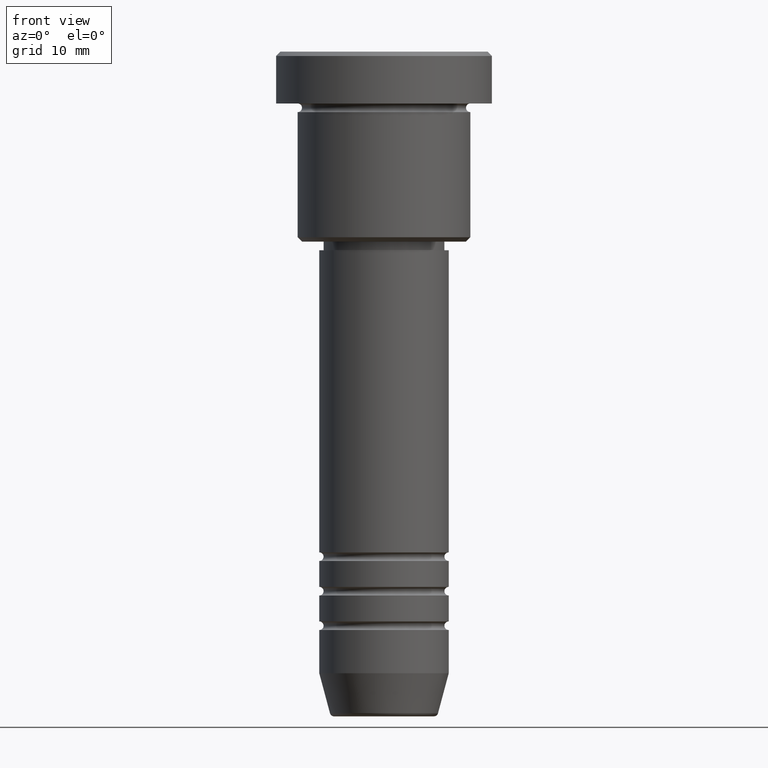
[diagram: clean part render]
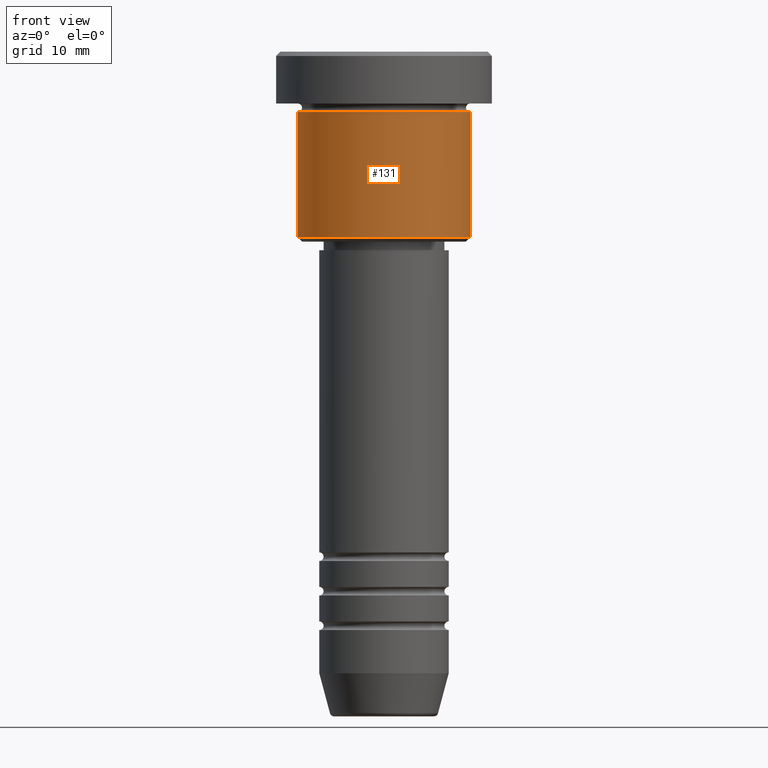
[diagram: same view with one face highlighted and labeled with its STEP entity id]
A machine part, front view. The second image highlights one B-rep face of the part: STEP entity #131.
In plain terms, the highlighted cylindrical surface (partial cylindrical patch) has radius 10 mm, axis along (-0, -0, 1).
Its self-contained STEP definition (entity closure, byte-faithful):
#2 = CARTESIAN_POINT ( 'NONE',  ( -10.00000000000000000, 1.224646799147353256E-15, -21.50000000000001776 ) ) ;
#23 = EDGE_CURVE ( 'NONE', #823, #800, #683, .T. ) ;
#30 = CARTESIAN_POINT ( 'NONE',  ( 10.00000000000000000, 0.000000000000000000, 0.000000000000000000 ) ) ;
#62 = CARTESIAN_POINT ( 'NONE',  ( 0.000000000000000000, 0.000000000000000000, -21.50000000000001776 ) ) ;
#127 = AXIS2_PLACEMENT_3D ( 'NONE', #780, #1049, #230 ) ;
#131 = ADVANCED_FACE ( 'NONE', ( #792 ), #1064, .T. ) ;
#135 = LINE ( 'NONE', #244, #616 ) ;
#140 = EDGE_CURVE ( 'NONE', #1183, #403, #135, .T. ) ;
#165 = DIRECTION ( 'NONE',  ( -1.000000000000000000, 0.000000000000000000, 0.000000000000000000 ) ) ;
#187 = EDGE_CURVE ( 'NONE', #1183, #823, #1051, .T. ) ;
#230 = DIRECTION ( 'NONE',  ( 1.000000000000000000, 0.000000000000000000, 0.000000000000000000 ) ) ;
#232 = ORIENTED_EDGE ( 'NONE', *, *, #140, .F. ) ;
#244 = CARTESIAN_POINT ( 'NONE',  ( -10.00000000000000000, 1.224646799147353256E-15, 0.000000000000000000 ) ) ;
#300 = DIRECTION ( 'NONE',  ( 1.000000000000000000, 0.000000000000000000, 0.000000000000000000 ) ) ;
#380 = AXIS2_PLACEMENT_3D ( 'NONE', #674, #1118, #300 ) ;
#392 = DIRECTION ( 'NONE',  ( -0.000000000000000000, -0.000000000000000000, 1.000000000000000000 ) ) ;
#403 = VERTEX_POINT ( 'NONE', #1018 ) ;
#427 = EDGE_CURVE ( 'NONE', #403, #800, #497, .T. ) ;
#435 = ORIENTED_EDGE ( 'NONE', *, *, #427, .F. ) ;
#438 = DIRECTION ( 'NONE',  ( -0.000000000000000000, -0.000000000000000000, 1.000000000000000000 ) ) ;
#490 = ORIENTED_EDGE ( 'NONE', *, *, #23, .T. ) ;
#497 = CIRCLE ( 'NONE', #380, 10.00000000000000000 ) ;
#542 = ORIENTED_EDGE ( 'NONE', *, *, #187, .T. ) ;
#562 = CARTESIAN_POINT ( 'NONE',  ( 10.00000000000000000, 0.000000000000000000, -6.999999999999996447 ) ) ;
#616 = VECTOR ( 'NONE', #978, 1000.000000000000000 ) ;
#674 = CARTESIAN_POINT ( 'NONE',  ( 0.000000000000000000, 0.000000000000000000, -6.999999999999996447 ) ) ;
#683 = LINE ( 'NONE', #30, #862 ) ;
#756 = CARTESIAN_POINT ( 'NONE',  ( 10.00000000000000000, 0.000000000000000000, -21.50000000000001776 ) ) ;
#780 = CARTESIAN_POINT ( 'NONE',  ( 0.000000000000000000, 0.000000000000000000, 0.000000000000000000 ) ) ;
#789 = AXIS2_PLACEMENT_3D ( 'NONE', #62, #438, #165 ) ;
#792 = FACE_OUTER_BOUND ( 'NONE', #964, .T. ) ;
#800 = VERTEX_POINT ( 'NONE', #562 ) ;
#823 = VERTEX_POINT ( 'NONE', #756 ) ;
#862 = VECTOR ( 'NONE', #392, 1000.000000000000000 ) ;
#964 = EDGE_LOOP ( 'NONE', ( #232, #542, #490, #435 ) ) ;
#978 = DIRECTION ( 'NONE',  ( -0.000000000000000000, -0.000000000000000000, 1.000000000000000000 ) ) ;
#1018 = CARTESIAN_POINT ( 'NONE',  ( -10.00000000000000000, 1.224646799147353256E-15, -6.999999999999996447 ) ) ;
#1049 = DIRECTION ( 'NONE',  ( -0.000000000000000000, -0.000000000000000000, 1.000000000000000000 ) ) ;
#1051 = CIRCLE ( 'NONE', #789, 10.00000000000000000 ) ;
#1064 = CYLINDRICAL_SURFACE ( 'NONE', #127, 10.00000000000000000 ) ;
#1118 = DIRECTION ( 'NONE',  ( -0.000000000000000000, -0.000000000000000000, 1.000000000000000000 ) ) ;
#1183 = VERTEX_POINT ( 'NONE', #2 ) ;